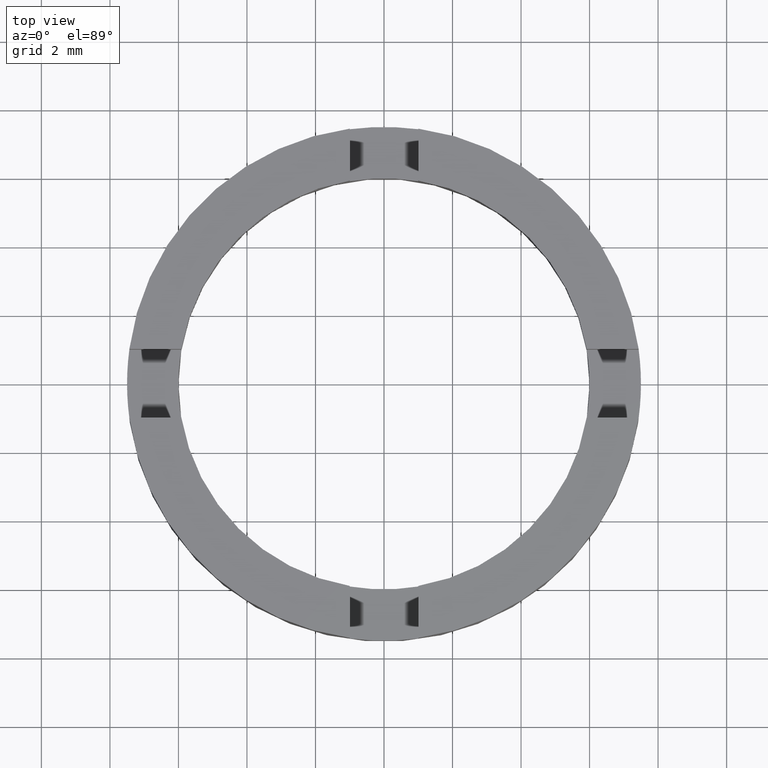
[diagram: clean part render]
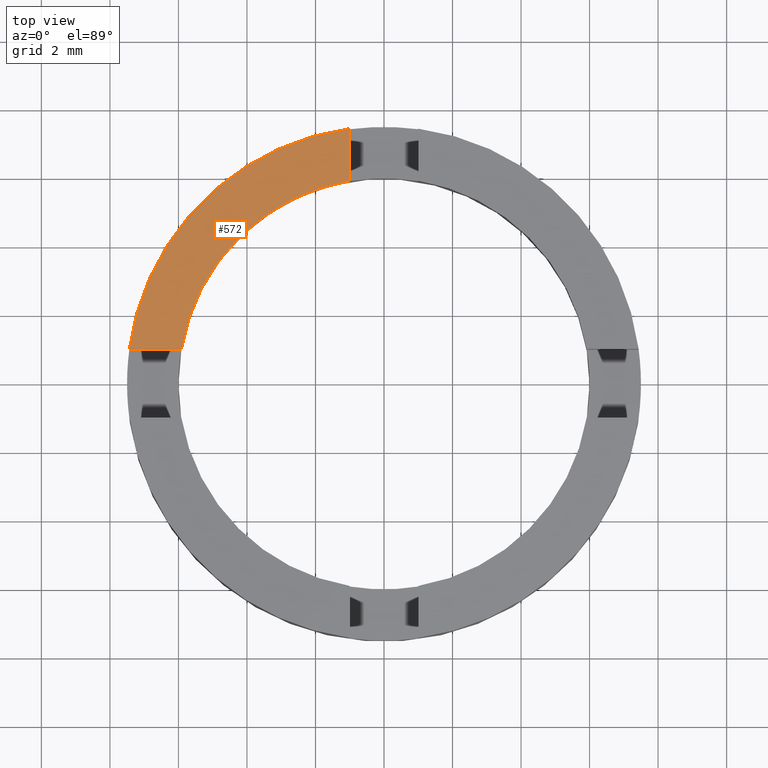
[diagram: same view with one face highlighted and labeled with its STEP entity id]
A machine part, top view. The second image highlights one B-rep face of the part: STEP entity #572.
In plain terms, the highlighted planar face has unit normal (0, 0, 1).
Its self-contained STEP definition (entity closure, byte-faithful):
#3 = LINE ( 'NONE', #238, #543 ) ;
#6 = EDGE_CURVE ( 'NONE', #421, #299, #529, .T. ) ;
#69 = FACE_OUTER_BOUND ( 'NONE', #326, .T. ) ;
#90 = DIRECTION ( 'NONE',  ( 0.000000000000000000, 1.000000000000000000, -0.000000000000000000 ) ) ;
#138 = ORIENTED_EDGE ( 'NONE', *, *, #203, .T. ) ;
#156 = AXIS2_PLACEMENT_3D ( 'NONE', #370, #177, #436 ) ;
#157 = VERTEX_POINT ( 'NONE', #451 ) ;
#177 = DIRECTION ( 'NONE',  ( 0.000000000000000000, 0.000000000000000000, 1.000000000000000000 ) ) ;
#203 = EDGE_CURVE ( 'NONE', #333, #157, #3, .T. ) ;
#207 = CARTESIAN_POINT ( 'NONE',  ( 0.000000000000000000, 0.000000000000000000, 2.500000000000000000 ) ) ;
#236 = PLANE ( 'NONE',  #782 ) ;
#238 = CARTESIAN_POINT ( 'NONE',  ( -0.9999999999999986677, 0.000000000000000000, 2.500000000000000000 ) ) ;
#267 = CARTESIAN_POINT ( 'NONE',  ( -7.433034373659249461, 1.000000000000026645, 2.500000000000000000 ) ) ;
#281 = CARTESIAN_POINT ( 'NONE',  ( -0.9999999999999986677, 5.916079783099617906, 2.500000000000000000 ) ) ;
#294 = ORIENTED_EDGE ( 'NONE', *, *, #748, .T. ) ;
#299 = VERTEX_POINT ( 'NONE', #354 ) ;
#309 = EDGE_CURVE ( 'NONE', #333, #299, #350, .T. ) ;
#326 = EDGE_LOOP ( 'NONE', ( #537, #138, #294, #665 ) ) ;
#333 = VERTEX_POINT ( 'NONE', #281 ) ;
#346 = CARTESIAN_POINT ( 'NONE',  ( 3.729655473350131309E-15, 0.9999999999999988898, 2.500000000000000000 ) ) ;
#350 = CIRCLE ( 'NONE', #156, 6.000000000000000888 ) ;
#354 = CARTESIAN_POINT ( 'NONE',  ( -5.916079783099614353, 1.000000000000021094, 2.500000000000000000 ) ) ;
#370 = CARTESIAN_POINT ( 'NONE',  ( 0.000000000000000000, 0.000000000000000000, 2.500000000000000000 ) ) ;
#421 = VERTEX_POINT ( 'NONE', #267 ) ;
#423 = CARTESIAN_POINT ( 'NONE',  ( 0.000000000000000000, 0.000000000000000000, 2.500000000000000000 ) ) ;
#436 = DIRECTION ( 'NONE',  ( 1.000000000000000000, 0.000000000000000000, 0.000000000000000000 ) ) ;
#451 = CARTESIAN_POINT ( 'NONE',  ( -0.9999999999999986677, 7.433034373659253013, 2.500000000000000000 ) ) ;
#508 = DIRECTION ( 'NONE',  ( 1.000000000000000000, -3.729655473350135253E-15, 0.000000000000000000 ) ) ;
#512 = DIRECTION ( 'NONE',  ( 0.000000000000000000, 0.000000000000000000, 1.000000000000000000 ) ) ;
#516 = DIRECTION ( 'NONE',  ( 1.000000000000000000, 0.000000000000000000, 0.000000000000000000 ) ) ;
#523 = DIRECTION ( 'NONE',  ( 0.000000000000000000, 0.000000000000000000, 1.000000000000000000 ) ) ;
#529 = LINE ( 'NONE', #346, #575 ) ;
#537 = ORIENTED_EDGE ( 'NONE', *, *, #309, .F. ) ;
#543 = VECTOR ( 'NONE', #90, 1000.000000000000000 ) ;
#572 = ADVANCED_FACE ( 'NONE', ( #69 ), #236, .T. ) ;
#575 = VECTOR ( 'NONE', #508, 1000.000000000000000 ) ;
#642 = CIRCLE ( 'NONE', #686, 7.500000000000000000 ) ;
#665 = ORIENTED_EDGE ( 'NONE', *, *, #6, .T. ) ;
#686 = AXIS2_PLACEMENT_3D ( 'NONE', #423, #512, #516 ) ;
#748 = EDGE_CURVE ( 'NONE', #157, #421, #642, .T. ) ;
#775 = DIRECTION ( 'NONE',  ( 1.000000000000000000, 0.000000000000000000, -0.000000000000000000 ) ) ;
#782 = AXIS2_PLACEMENT_3D ( 'NONE', #207, #523, #775 ) ;